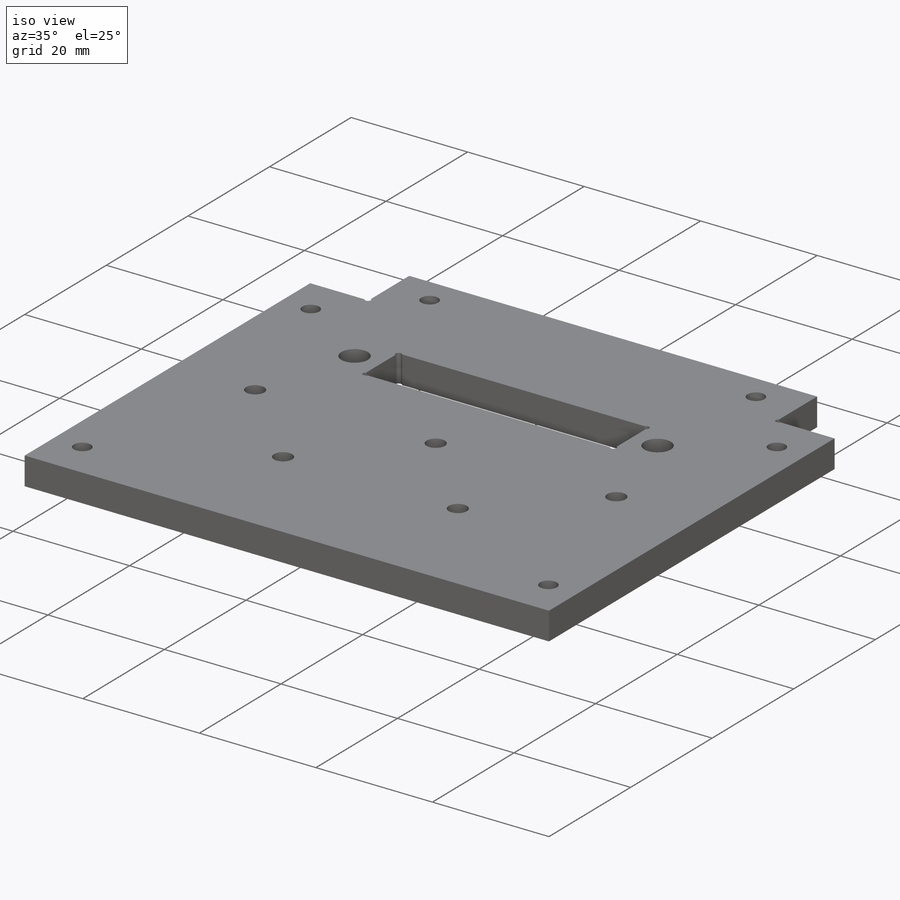
[diagram: iso view]
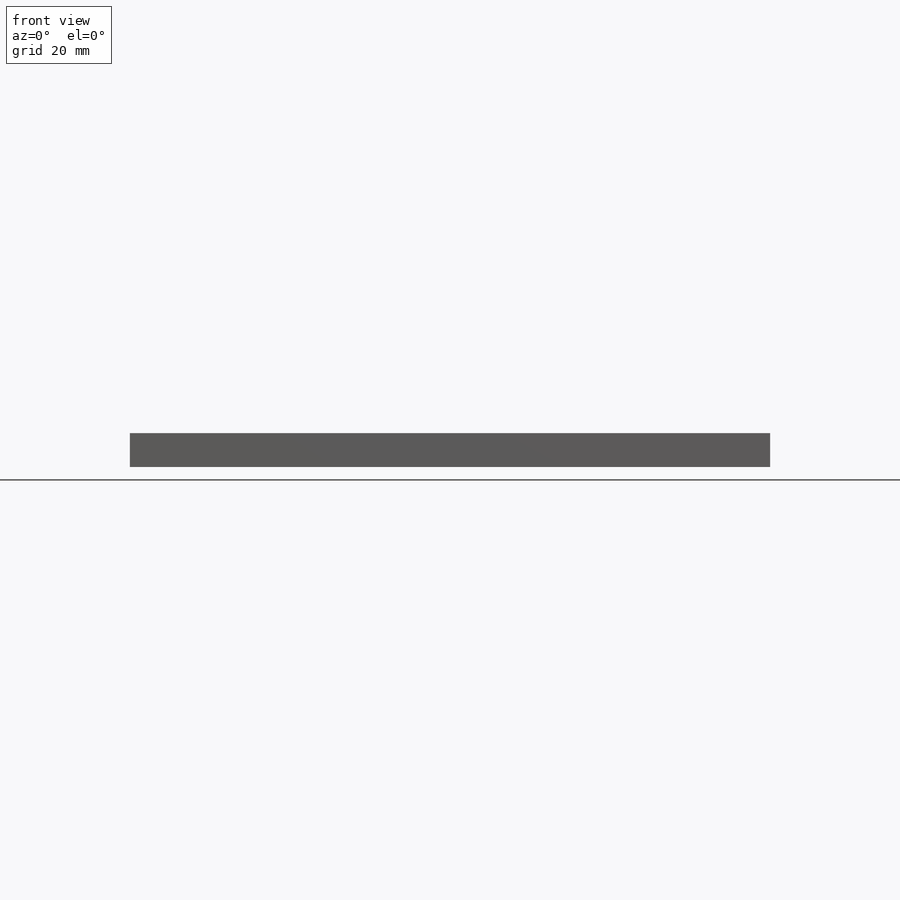
[diagram: front view]
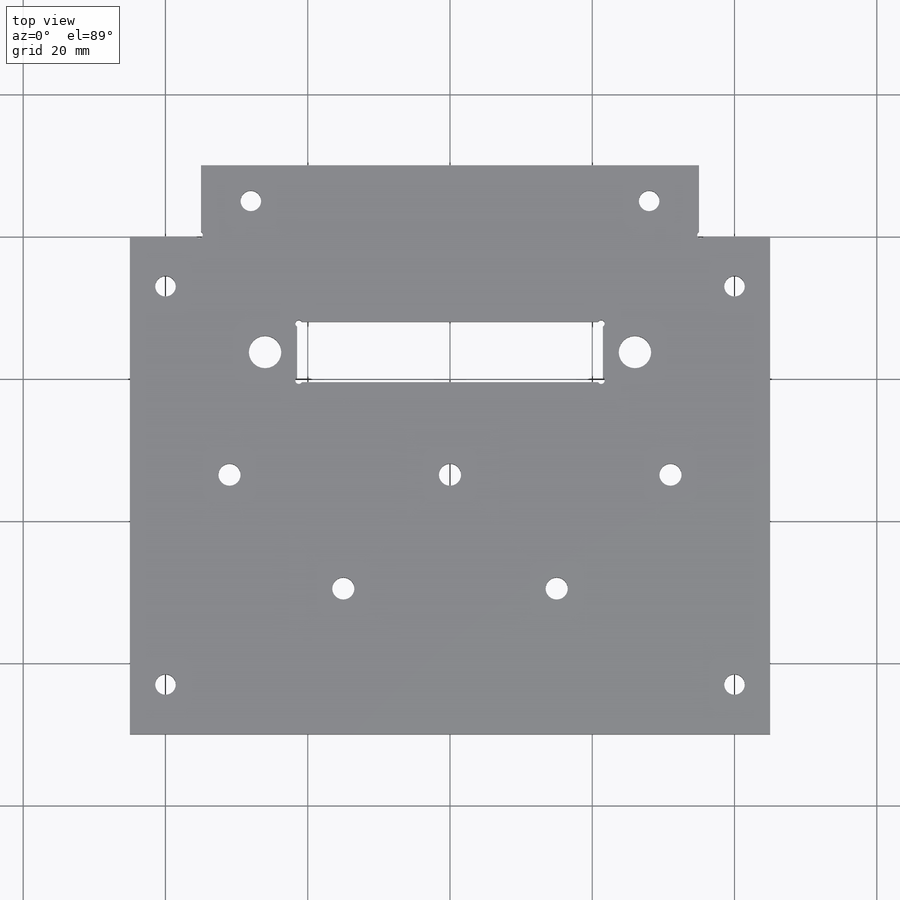
[diagram: top view]
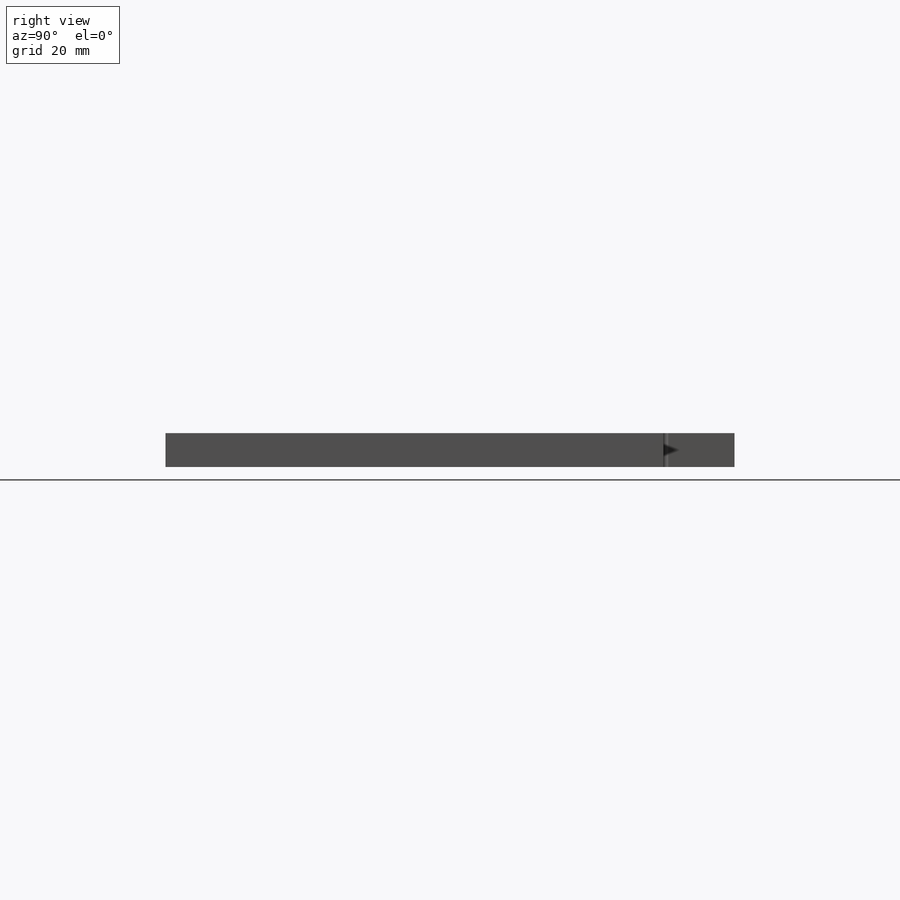
[diagram: right view]
SOLIDWORKS PART (.sldprt)
format: sldprt  version: not decoded by parser v0  size: 244,224 bytes
history: native  units: mm
features: sketch x5, cut_extrude x4, material x1, extrude x1 (+16 scaffold rows collapsed)
feature tree (27):
  scaffold x16  (default folders/planes/origin — collapsed)
  material  "Material <not specified>"
  sketch  "Sketch1"  dims[D1=10.0mm D2=90.0mm D3=10.0mm D4=70.0mm]
  extrude  "Base"  Depth=4.7625mm
  sketch  "Sketch2"  dims[D1=3.125mm D2=31.0mm D3=8.0mm D4=8.0mm D5=15.0mm D6=41.5mm]
  cut_extrude  "Cut-Extrude1"  [1 undecoded]
  sketch  "Sketch3"  dims[D4=4.572mm D1=8.5mm D2=43.0mm D3=12.0mm D5=52.0mm]
  cut_extrude  "Cut-Extrude2"  [1 undecoded]
  sketch  "Sketch4"  dims[c1.D1=2.9mm c1.D2=7.0mm c1.D3=7.0mm c1.D4=7.0mm c1.D5=5.0mm c1.D6=40.0mm c2.D5=5.0mm]
  cut_extrude  "Cut-Extrude3"  [1 undecoded]
  sketch  "Sketch5"  dims[D1=1.0mm D2=0.25mm]
  cut_extrude  "Cut-Extrude4"  [1 undecoded]
decode coverage: 6 of 10 modeling features carry decoded parameters
note: 4 parameter values undecoded
summary: no parameter record found for 4 features
note: suppression state not decoded; provenance and decode notes live in map.json
